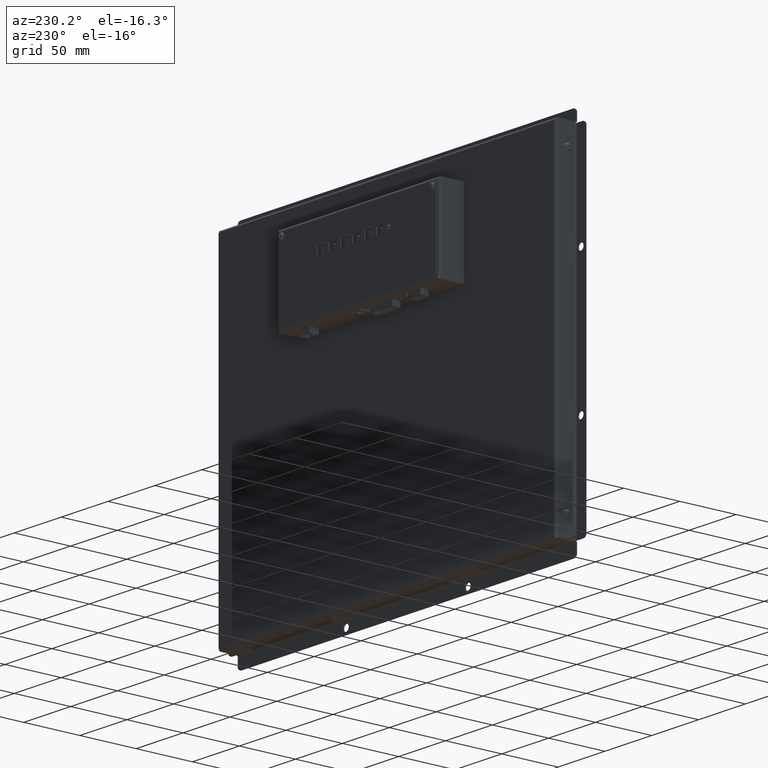
[diagram: clean part render]
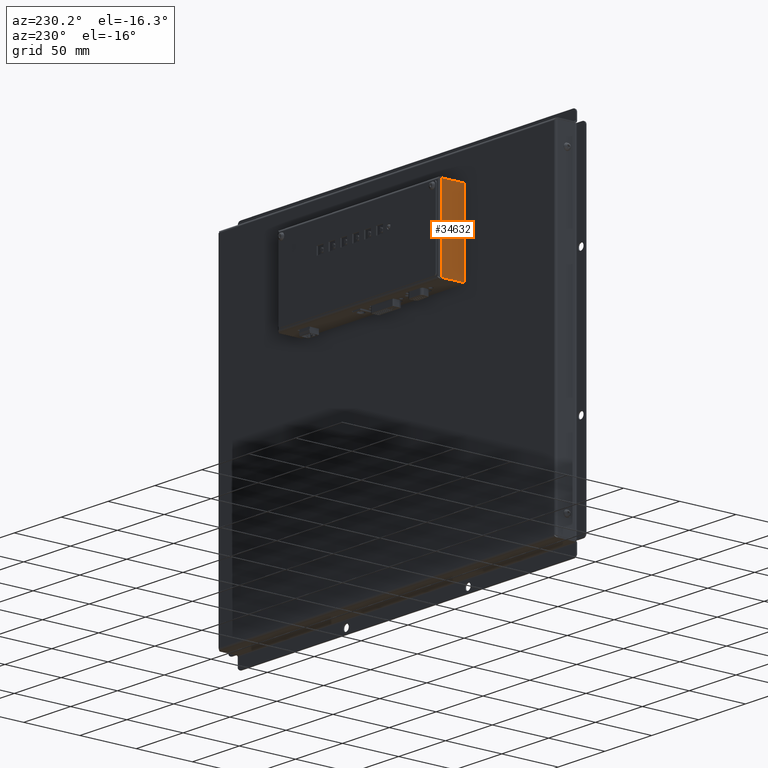
[diagram: same view with one face highlighted and labeled with its STEP entity id]
A machine part, auxiliary view. The second image highlights one B-rep face of the part: STEP entity #34632.
In plain terms, the highlighted planar face has unit normal (-1, 0, 0).
Its self-contained STEP definition (entity closure, byte-faithful):
#3423=PLANE('',#37995);
#5276=FACE_OUTER_BOUND('',#7406,.T.);
#7406=EDGE_LOOP('',(#32073,#32074,#32075,#32076));
#10621=LINE('',#59977,#13831);
#10624=LINE('',#60022,#13834);
#10633=LINE('',#60123,#13843);
#10635=LINE('',#60126,#13845);
#13831=VECTOR('',#47010,10.);
#13834=VECTOR('',#47015,10.);
#13843=VECTOR('',#47034,10.);
#13845=VECTOR('',#47038,10.);
#18176=VERTEX_POINT('',#59884);
#18182=VERTEX_POINT('',#59976);
#18185=VERTEX_POINT('',#60020);
#18188=VERTEX_POINT('',#60122);
#22842=EDGE_CURVE('',#18182,#18176,#10621,.T.);
#22848=EDGE_CURVE('',#18185,#18176,#10624,.T.);
#22860=EDGE_CURVE('',#18182,#18188,#10633,.T.);
#22862=EDGE_CURVE('',#18188,#18185,#10635,.T.);
#32073=ORIENTED_EDGE('',*,*,#22848,.F.);
#32074=ORIENTED_EDGE('',*,*,#22862,.F.);
#32075=ORIENTED_EDGE('',*,*,#22860,.F.);
#32076=ORIENTED_EDGE('',*,*,#22842,.T.);
#34632=ADVANCED_FACE('',(#5276),#3423,.T.);
#37995=AXIS2_PLACEMENT_3D('',#60125,#47036,#47037);
#47010=DIRECTION('',(-4.42712624180909E-18,-1.,-2.38635512346503E-32));
#47015=DIRECTION('',(-5.73620163444776E-15,-8.88178419700124E-16,1.));
#47034=DIRECTION('',(5.73620163444776E-15,1.77635683940025E-15,-1.));
#47036=DIRECTION('center_axis',(1.,-4.42712624180909E-18,5.73620163444776E-15));
#47037=DIRECTION('ref_axis',(5.73620163444776E-15,0.,-1.));
#47038=DIRECTION('',(0.,-1.,0.));
#59884=CARTESIAN_POINT('',(86.5,-35.4,-1.99999999999999));
#59976=CARTESIAN_POINT('',(86.5,35.4,-1.99999999999999));
#59977=CARTESIAN_POINT('',(86.5,1.55418800045862E-14,-1.99999999999999));
#60020=CARTESIAN_POINT('',(86.5000000000001,-35.4,-22.));
#60022=CARTESIAN_POINT('',(86.5000000000001,-35.4,-11.4350002692152));
#60122=CARTESIAN_POINT('',(86.5000000000001,35.4000000000001,-22.));
#60123=CARTESIAN_POINT('',(86.5000000000001,35.4,-11.4350002692151));
#60125=CARTESIAN_POINT('Origin',(86.5000000000001,1.77635683940025E-14,
-10.8700005384303));
#60126=CARTESIAN_POINT('',(86.5000000000001,35.5,-22.));